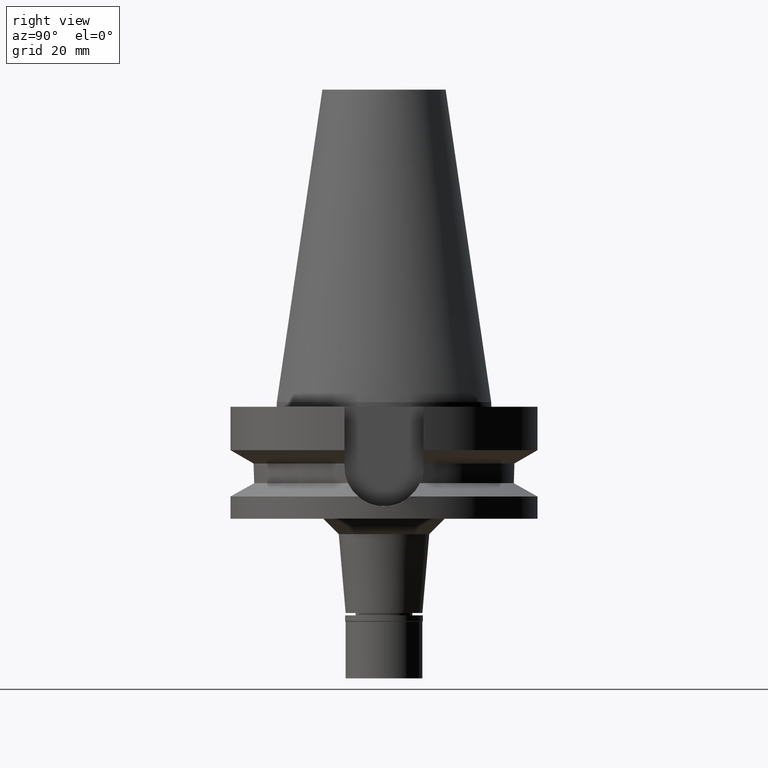
[diagram: clean part render]
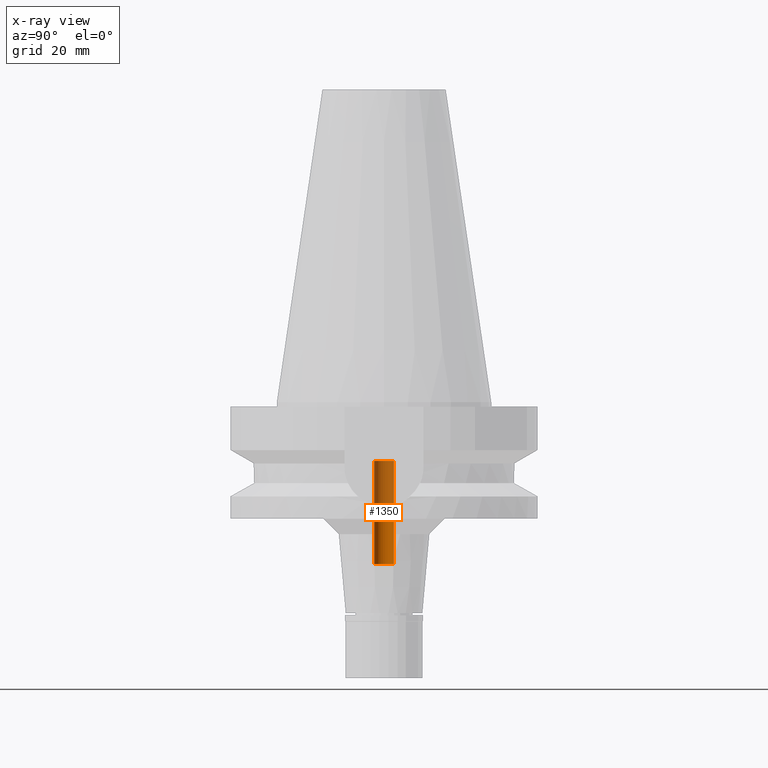
[diagram: x-ray — body ghosted, one internal face saturated and labeled with its STEP entity id]
A machine part, right view, then the same camera in x-ray: the body is ghosted and one INTERNAL B-rep face — a face not visible from any outside direction — is saturated and labeled: STEP entity #1350.
In plain terms, the highlighted cylindrical surface (edge-blend (fillet) strip) has radius 3.2 mm, axis along (0, 0, -1).
Its self-contained STEP definition (entity closure, byte-faithful):
#68 = CIRCLE ( 'NONE', #1704, 3.200000000000000178 ) ;
#129 = EDGE_CURVE ( 'NONE', #1118, #1520, #1866, .T. ) ;
#236 = DIRECTION ( 'NONE',  ( 0.0000000000000000000, 0.0000000000000000000, -1.000000000000000000 ) ) ;
#433 = ORIENTED_EDGE ( 'NONE', *, *, #1085, .T. ) ;
#619 = CARTESIAN_POINT ( 'NONE',  ( 0.0000000000000000000, 2.584984463639999652E-14, -19.19999999999999929 ) ) ;
#730 = DIRECTION ( 'NONE',  ( 0.0000000000000000000, -1.000000000000000000, 0.0000000000000000000 ) ) ;
#873 = CARTESIAN_POINT ( 'NONE',  ( 0.0000000000000000000, 2.584984463639999652E-14, -52.79999999999999716 ) ) ;
#899 = DIRECTION ( 'NONE',  ( 0.0000000000000000000, 1.000000000000000000, 0.0000000000000000000 ) ) ;
#924 = CARTESIAN_POINT ( 'NONE',  ( 0.0000000000000000000, 3.200000000000000178, -52.79999999999999716 ) ) ;
#992 = AXIS2_PLACEMENT_3D ( 'NONE', #2922, #236, #730 ) ;
#1058 = ORIENTED_EDGE ( 'NONE', *, *, #129, .T. ) ;
#1065 = CARTESIAN_POINT ( 'NONE',  ( 0.0000000000000000000, -3.200000000000000178, -52.79999999999999716 ) ) ;
#1085 = EDGE_CURVE ( 'NONE', #1736, #1118, #1551, .T. ) ;
#1118 = VERTEX_POINT ( 'NONE', #2573 ) ;
#1299 = AXIS2_PLACEMENT_3D ( 'NONE', #873, #2590, #2840 ) ;
#1328 = DIRECTION ( 'NONE',  ( 0.0000000000000000000, 0.0000000000000000000, 1.000000000000000000 ) ) ;
#1350 = ADVANCED_FACE ( 'NONE', ( #2909 ), #1417, .F. ) ;
#1358 = EDGE_LOOP ( 'NONE', ( #1840, #2770, #433, #1058 ) ) ;
#1389 = CARTESIAN_POINT ( 'NONE',  ( 0.0000000000000000000, 3.200000000000000178, -19.19999999999999929 ) ) ;
#1415 = EDGE_CURVE ( 'NONE', #1736, #1844, #2519, .T. ) ;
#1417 = CYLINDRICAL_SURFACE ( 'NONE', #992, 3.200000000000000178 ) ;
#1488 = EDGE_CURVE ( 'NONE', #1520, #1844, #68, .T. ) ;
#1520 = VERTEX_POINT ( 'NONE', #1389 ) ;
#1551 = CIRCLE ( 'NONE', #1299, 3.200000000000000178 ) ;
#1650 = VECTOR ( 'NONE', #2037, 1000.000000000000000 ) ;
#1704 = AXIS2_PLACEMENT_3D ( 'NONE', #619, #1328, #899 ) ;
#1720 = CARTESIAN_POINT ( 'NONE',  ( 0.0000000000000000000, -3.200000000000000178, -52.79999999999999716 ) ) ;
#1736 = VERTEX_POINT ( 'NONE', #1720 ) ;
#1840 = ORIENTED_EDGE ( 'NONE', *, *, #1488, .T. ) ;
#1844 = VERTEX_POINT ( 'NONE', #2321 ) ;
#1866 = LINE ( 'NONE', #924, #2682 ) ;
#2037 = DIRECTION ( 'NONE',  ( 0.0000000000000000000, 0.0000000000000000000, 1.000000000000000000 ) ) ;
#2321 = CARTESIAN_POINT ( 'NONE',  ( 0.0000000000000000000, -3.200000000000000178, -19.19999999999999929 ) ) ;
#2519 = LINE ( 'NONE', #1065, #1650 ) ;
#2573 = CARTESIAN_POINT ( 'NONE',  ( 0.0000000000000000000, 3.200000000000000178, -52.79999999999999716 ) ) ;
#2590 = DIRECTION ( 'NONE',  ( 0.0000000000000000000, 0.0000000000000000000, -1.000000000000000000 ) ) ;
#2682 = VECTOR ( 'NONE', #3090, 1000.000000000000000 ) ;
#2770 = ORIENTED_EDGE ( 'NONE', *, *, #1415, .F. ) ;
#2840 = DIRECTION ( 'NONE',  ( 0.0000000000000000000, -1.000000000000000000, 0.0000000000000000000 ) ) ;
#2909 = FACE_OUTER_BOUND ( 'NONE', #1358, .T. ) ;
#2922 = CARTESIAN_POINT ( 'NONE',  ( 0.0000000000000000000, 2.584984463639999652E-14, 111.0799999999999983 ) ) ;
#3090 = DIRECTION ( 'NONE',  ( 0.0000000000000000000, 0.0000000000000000000, 1.000000000000000000 ) ) ;